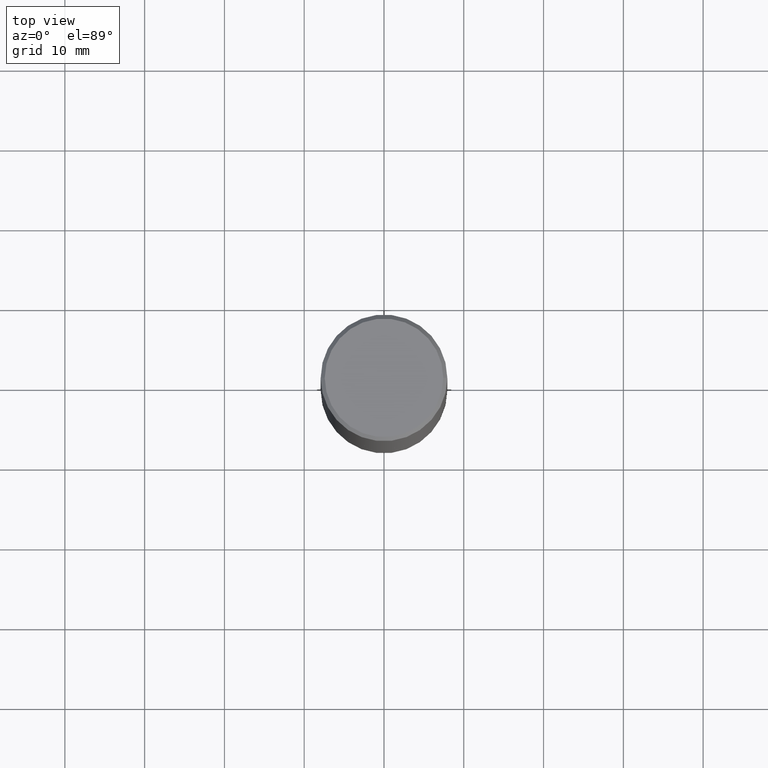
[diagram: clean part render]
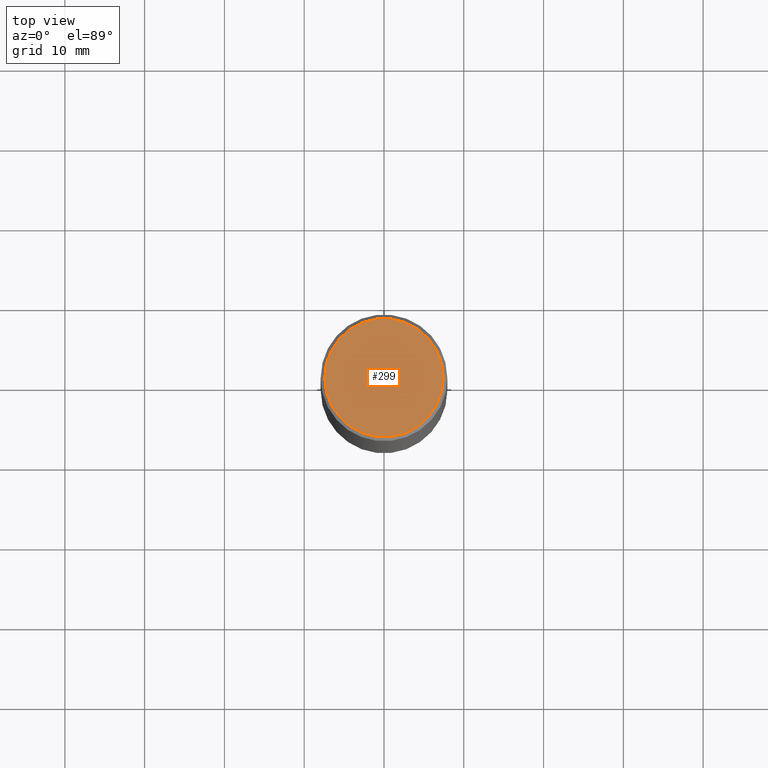
[diagram: same view with one face highlighted and labeled with its STEP entity id]
A machine part, top view. The second image highlights one B-rep face of the part: STEP entity #299.
In plain terms, the highlighted planar face has unit normal (0, -0, -1).
Its self-contained STEP definition (entity closure, byte-faithful):
#1 = ORIENTED_EDGE ( 'NONE', *, *, #171, .T. ) ;
#42 = DIRECTION ( 'NONE',  ( -2.445468806185136597E-29, 3.491481338843145583E-15, 1.000000000000000000 ) ) ;
#55 = CIRCLE ( 'NONE', #92, 0.2924999999999997047 ) ;
#75 = DIRECTION ( 'NONE',  ( 2.438088387897960049E-29, -3.491481338843145188E-15, -1.000000000000000000 ) ) ;
#79 = PLANE ( 'NONE',  #139 ) ;
#92 = AXIS2_PLACEMENT_3D ( 'NONE', #280, #278, #406 ) ;
#139 = AXIS2_PLACEMENT_3D ( 'NONE', #409, #75, #402 ) ;
#140 = CARTESIAN_POINT ( 'NONE',  ( -3.862250233040313002E-45, 5.514269730407654285E-31, 1.579349621337152204E-16 ) ) ;
#171 = EDGE_CURVE ( 'NONE', #288, #183, #55, .T. ) ;
#172 = DIRECTION ( 'NONE',  ( 1.000000000000000000, -6.982962677686265133E-15, 4.873475059489881261E-29 ) ) ;
#183 = VERTEX_POINT ( 'NONE', #389 ) ;
#250 = ORIENTED_EDGE ( 'NONE', *, *, #286, .T. ) ;
#273 = CARTESIAN_POINT ( 'NONE',  ( -0.2924999999999997047, 2.077431396611662611E-15, 1.579349621337007990E-16 ) ) ;
#278 = DIRECTION ( 'NONE',  ( -2.445468806185136597E-29, 3.491481338843145583E-15, 1.000000000000000000 ) ) ;
#280 = CARTESIAN_POINT ( 'NONE',  ( -3.862250233040313002E-45, 5.514269730407654285E-31, 1.579349621337152204E-16 ) ) ;
#286 = EDGE_CURVE ( 'NONE', #183, #288, #296, .T. ) ;
#288 = VERTEX_POINT ( 'NONE', #273 ) ;
#296 = CIRCLE ( 'NONE', #354, 0.2924999999999997047 ) ;
#299 = ADVANCED_FACE ( 'NONE', ( #376 ), #79, .F. ) ;
#354 = AXIS2_PLACEMENT_3D ( 'NONE', #140, #42, #172 ) ;
#376 = FACE_OUTER_BOUND ( 'NONE', #384, .T. ) ;
#384 = EDGE_LOOP ( 'NONE', ( #1, #250 ) ) ;
#389 = CARTESIAN_POINT ( 'NONE',  ( 0.2924999999999997047, -2.110215457714317959E-15, 1.579349621337297404E-16 ) ) ;
#402 = DIRECTION ( 'NONE',  ( -1.000000000000000000, 6.982962677686265922E-15, -4.876176775795935793E-29 ) ) ;
#406 = DIRECTION ( 'NONE',  ( 1.000000000000000000, -6.982962677686265133E-15, 4.873475059489881261E-29 ) ) ;
#409 = CARTESIAN_POINT ( 'NONE',  ( 2.042516583223230567E-15, 0.2924999999999997047, -9.422908105447613343E-16 ) ) ;